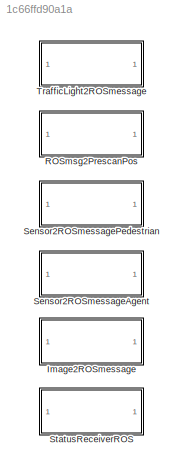
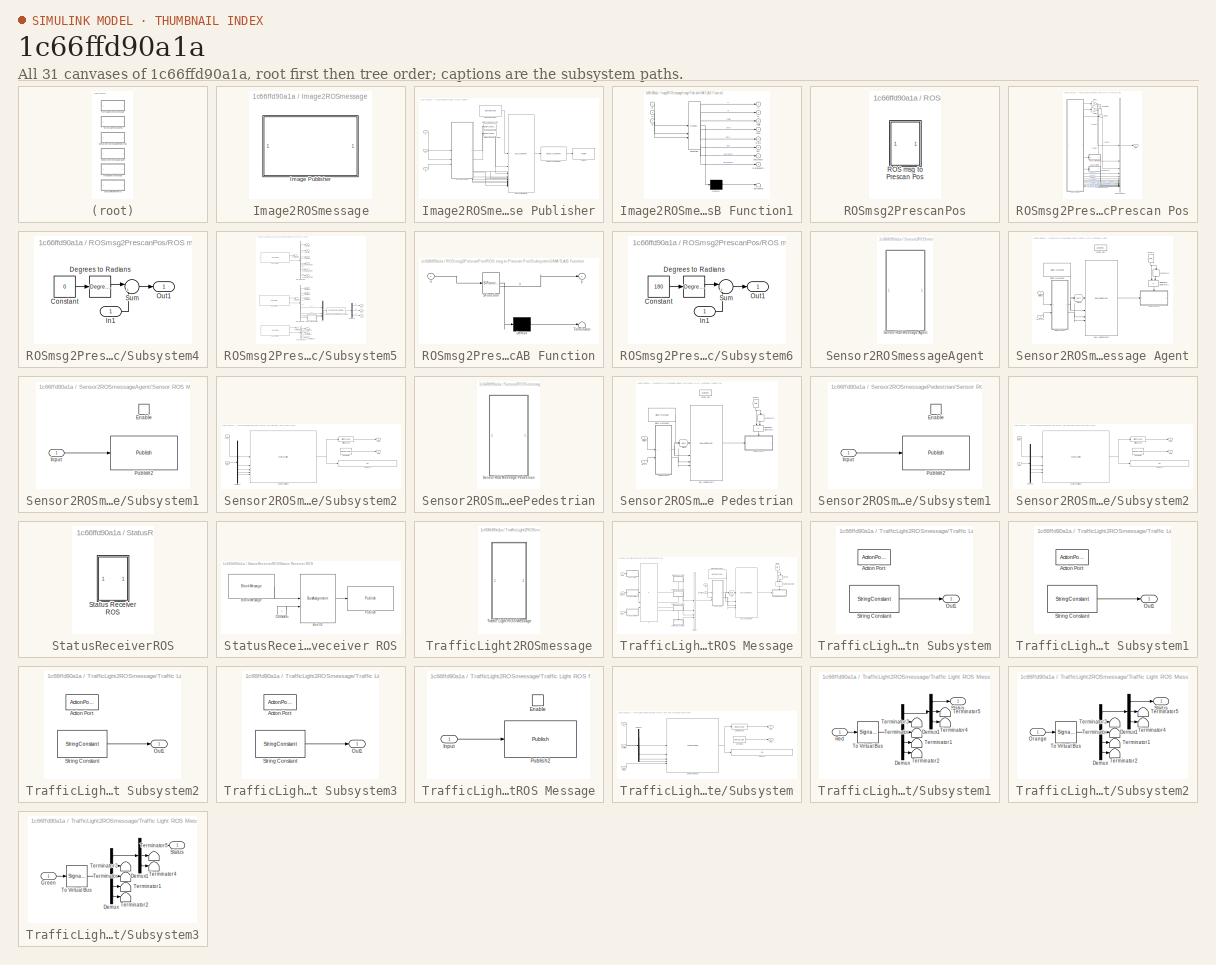
[diagram: thumbnail index - all 31 canvases of the model, root first then tree order]
MODEL slx_1c66ffd90a1a
KIND library
CONFIG AbsTol = auto
CONFIG EnableMultiTasking = off
CONFIG FixedStep = auto
CONFIG MaxStep = auto
CONFIG MinStep = auto
CONFIG RelTol = 1e-3
CONFIG SampleTimeConstraint = Unconstrained
CONFIG SolverName = VariableStepAuto
CONFIG StartTime = 0.0
CONFIG StopTime = 10.0
BLOCK [SubSystem] Image2ROSmessage
BLOCK [SubSystem] Image2ROSmessage/Image Publisher
BLOCK [Inport] Image2ROSmessage/Image Publisher/B
  Port = 3
BLOCK [Reference] Image2ROSmessage/Image Publisher/Blank Message1  REF=robotlib/Blank Message
  SourceBlock = robotlib/Blank Message
  SourceType = ROS Blank Message
BLOCK [BusAssignment] Image2ROSmessage/Image Publisher/Bus Assignment1
  AssignedSignals = Height,Width,IsBigendian,Step,Data,Encoding,Encoding_SL_Info.CurrentLength,Encoding_SL_Info.ReceivedLength,Data_SL_Info.CurrentLength,Data_SL_Info.ReceivedLength
BLOCK [DataTypeConversion] Image2ROSmessage/Image Publisher/Data Type Conversion
  OutDataTypeStr = uint32
  RndMeth = Round
  SaturateOnIntegerOverflow = off
BLOCK [DataTypeConversion] Image2ROSmessage/Image Publisher/Data Type Conversion1
  OutDataTypeStr = uint32
  RndMeth = Round
  SaturateOnIntegerOverflow = off
BLOCK [Inport] Image2ROSmessage/Image Publisher/G
  Port = 2
BLOCK [Reference] Image2ROSmessage/Image Publisher/Header Assignment  REF=robotlib/Header Assignment
  SourceBlock = robotlib/Header Assignment
  SourceType = ROS Header
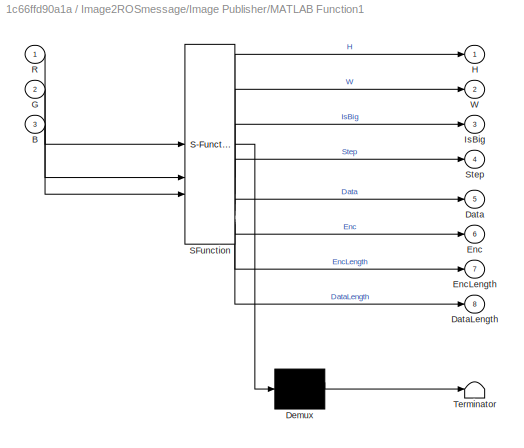
BLOCK [SubSystem] Image2ROSmessage/Image Publisher/MATLAB Function1
  ErrorFcn = Stateflow.Translate.translate
  PermitHierarchicalResolution = ExplicitOnly
  SFBlockType = MATLAB Function
  TreatAsAtomicUnit = on
BLOCK [Demux] Image2ROSmessage/Image Publisher/MATLAB Function1/ Demux 
  Outputs = 1
BLOCK [S-Function] Image2ROSmessage/Image Publisher/MATLAB Function1/ SFunction 
  EnableBusSupport = on
  FunctionName = sf_sfun
  PortCounts = [3 9]
  SFcnIsStateOwnerBlock = off
  SFunctionDeploymentMode = off
  Tag = Stateflow S-Function 1
BLOCK [Terminator] Image2ROSmessage/Image Publisher/MATLAB Function1/ Terminator 
BLOCK [Inport] Image2ROSmessage/Image Publisher/MATLAB Function1/B
  Port = 3
BLOCK [Outport] Image2ROSmessage/Image Publisher/MATLAB Function1/Data
  Port = 5
BLOCK [Outport] Image2ROSmessage/Image Publisher/MATLAB Function1/DataLength
  Port = 8
BLOCK [Outport] Image2ROSmessage/Image Publisher/MATLAB Function1/Enc
  Port = 6
BLOCK [Outport] Image2ROSmessage/Image Publisher/MATLAB Function1/EncLength
  Port = 7
BLOCK [Inport] Image2ROSmessage/Image Publisher/MATLAB Function1/G
  Port = 2
BLOCK [Outport] Image2ROSmessage/Image Publisher/MATLAB Function1/H
BLOCK [Outport] Image2ROSmessage/Image Publisher/MATLAB Function1/IsBig
  Port = 3
BLOCK [Inport] Image2ROSmessage/Image Publisher/MATLAB Function1/R
BLOCK [Outport] Image2ROSmessage/Image Publisher/MATLAB Function1/Step
  Port = 4
BLOCK [Outport] Image2ROSmessage/Image Publisher/MATLAB Function1/W
  Port = 2
BLOCK [Reference] Image2ROSmessage/Image Publisher/Publish1  REF=robotlib/Publish
  SourceBlock = robotlib/Publish
  SourceType = ROS Publish
BLOCK [Inport] Image2ROSmessage/Image Publisher/R
BLOCK [SubSystem] ROSmsg2PrescanPos
BLOCK [SubSystem] ROSmsg2PrescanPos/ROS msg to Prescan Pos
BLOCK [BusCreator] ROSmsg2PrescanPos/ROS msg to Prescan Pos/Bus Creator3
  DisplayOption = bar
  InheritFromInputs = on
  Inputs = 15
  NonVirtualBus = on
  OutDataTypeStr = Bus: PRESCAN_STATEACTUATORDATA
BLOCK [Constant] ROSmsg2PrescanPos/ROS msg to Prescan Pos/Constant1
  NameLocation = left
  Value = 0.4
BLOCK [Gain] ROSmsg2PrescanPos/ROS msg to Prescan Pos/Gain2
  Gain = 10
BLOCK [Gain] ROSmsg2PrescanPos/ROS msg to Prescan Pos/Gain3
  Gain = 10
BLOCK [Outport] ROSmsg2PrescanPos/ROS msg to Prescan Pos/Out1
BLOCK [SubSystem] ROSmsg2PrescanPos/ROS msg to Prescan Pos/Subsystem4
BLOCK [Constant] ROSmsg2PrescanPos/ROS msg to Prescan Pos/Subsystem4/Constant
  Value = 0
BLOCK [Reference] ROSmsg2PrescanPos/ROS msg to Prescan Pos/Subsystem4/Degrees to Radians  REF=simulink_extras/Transformations/Degrees to
Radians
  SourceBlock = simulink_extras/Transformations/Degrees to\nRadians
  SourceType = DegreesToRadians
BLOCK [Inport] ROSmsg2PrescanPos/ROS msg to Prescan Pos/Subsystem4/In1
BLOCK [Outport] ROSmsg2PrescanPos/ROS msg to Prescan Pos/Subsystem4/Out1
BLOCK [Sum] ROSmsg2PrescanPos/ROS msg to Prescan Pos/Subsystem4/Sum
  Inputs = |++
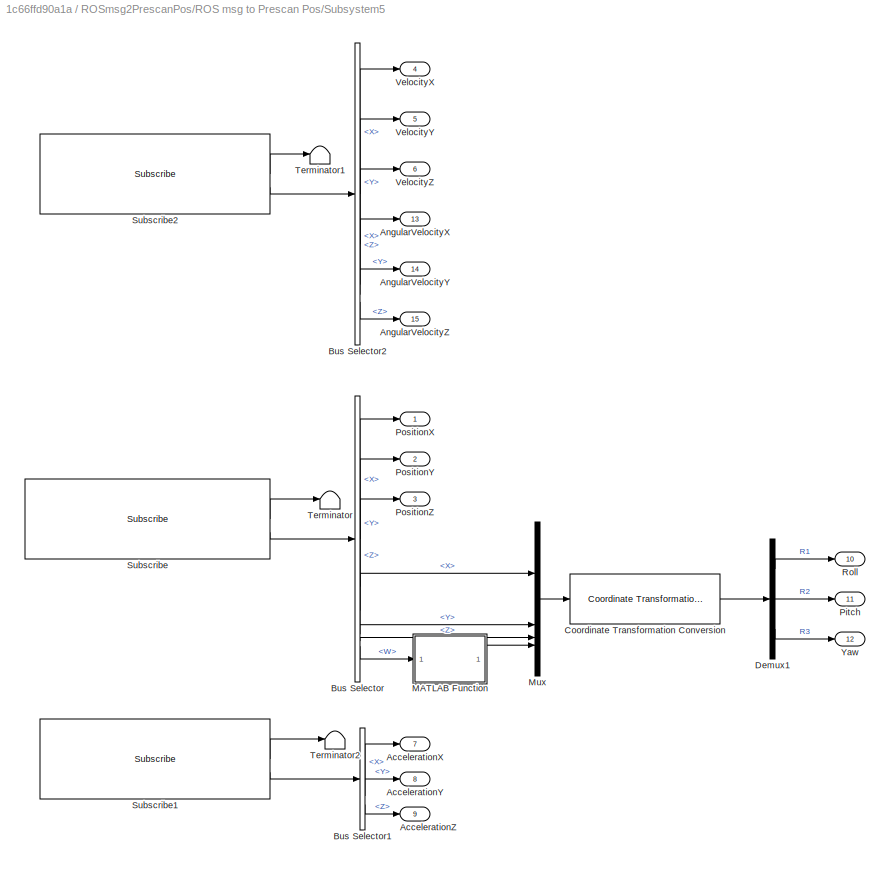
BLOCK [SubSystem] ROSmsg2PrescanPos/ROS msg to Prescan Pos/Subsystem5
BLOCK [Outport] ROSmsg2PrescanPos/ROS msg to Prescan Pos/Subsystem5/AccelerationX 
  Port = 7
BLOCK [Outport] ROSmsg2PrescanPos/ROS msg to Prescan Pos/Subsystem5/AccelerationY
  Port = 8
BLOCK [Outport] ROSmsg2PrescanPos/ROS msg to Prescan Pos/Subsystem5/AccelerationZ
  Port = 9
BLOCK [Outport] ROSmsg2PrescanPos/ROS msg to Prescan Pos/Subsystem5/AngularVelocityX
  Port = 13
BLOCK [Outport] ROSmsg2PrescanPos/ROS msg to Prescan Pos/Subsystem5/AngularVelocityY
  Port = 14
BLOCK [Outport] ROSmsg2PrescanPos/ROS msg to Prescan Pos/Subsystem5/AngularVelocityZ
  Port = 15
BLOCK [BusSelector] ROSmsg2PrescanPos/ROS msg to Prescan Pos/Subsystem5/Bus Selector
  OutputSignals = Pose.Position.X,Pose.Position.Y,Pose.Position.Z,Pose.Orientation.X,Pose.Orientation.Y,Pose.Orientation.Z,Pose.Orientation.W
BLOCK [BusSelector] ROSmsg2PrescanPos/ROS msg to Prescan Pos/Subsystem5/Bus Selector1
  OutputSignals = Twist.Linear.X,Twist.Linear.Y,Twist.Linear.Z
BLOCK [BusSelector] ROSmsg2PrescanPos/ROS msg to Prescan Pos/Subsystem5/Bus Selector2
  OutputSignals = Twist.Linear.X,Twist.Linear.Y,Twist.Linear.Z,Twist.Angular.X,Twist.Angular.Y,Twist.Angular.Z
BLOCK [Reference] ROSmsg2PrescanPos/ROS msg to Prescan Pos/Subsystem5/Coordinate Transformation Conversion  REF=robotcorelib/Coordinate Transformation Conversion
  SourceBlock = robotcorelib/Coordinate Transformation Conversion
  SourceType = robotics.slcore.internal.block.CoordinateTransformationConversion
BLOCK [Demux] ROSmsg2PrescanPos/ROS msg to Prescan Pos/Subsystem5/Demux1
  Outputs = 3
BLOCK [SubSystem] ROSmsg2PrescanPos/ROS msg to Prescan Pos/Subsystem5/MATLAB Function
  ErrorFcn = Stateflow.Translate.translate
  PermitHierarchicalResolution = ExplicitOnly
  SFBlockType = MATLAB Function
  TreatAsAtomicUnit = on
BLOCK [Demux] ROSmsg2PrescanPos/ROS msg to Prescan Pos/Subsystem5/MATLAB Function/ Demux 
  Outputs = 1
BLOCK [S-Function] ROSmsg2PrescanPos/ROS msg to Prescan Pos/Subsystem5/MATLAB Function/ SFunction 
  EnableBusSupport = off
  FunctionName = sf_sfun
  PortCounts = [1 2]
  SFcnIsStateOwnerBlock = off
  SFunctionDeploymentMode = off
  Tag = Stateflow S-Function 2
BLOCK [Terminator] ROSmsg2PrescanPos/ROS msg to Prescan Pos/Subsystem5/MATLAB Function/ Terminator 
BLOCK [Inport] ROSmsg2PrescanPos/ROS msg to Prescan Pos/Subsystem5/MATLAB Function/u
BLOCK [Outport] ROSmsg2PrescanPos/ROS msg to Prescan Pos/Subsystem5/MATLAB Function/y
BLOCK [Mux] ROSmsg2PrescanPos/ROS msg to Prescan Pos/Subsystem5/Mux
  DisplayOption = bar
BLOCK [Outport] ROSmsg2PrescanPos/ROS msg to Prescan Pos/Subsystem5/Pitch
  Port = 11
BLOCK [Outport] ROSmsg2PrescanPos/ROS msg to Prescan Pos/Subsystem5/PositionX
BLOCK [Outport] ROSmsg2PrescanPos/ROS msg to Prescan Pos/Subsystem5/PositionY
  Port = 2
BLOCK [Outport] ROSmsg2PrescanPos/ROS msg to Prescan Pos/Subsystem5/PositionZ
  Port = 3
BLOCK [Outport] ROSmsg2PrescanPos/ROS msg to Prescan Pos/Subsystem5/Roll
  Port = 10
BLOCK [Reference] ROSmsg2PrescanPos/ROS msg to Prescan Pos/Subsystem5/Subscribe  REF=robotlib/Subscribe
  SourceBlock = robotlib/Subscribe
  SourceType = ROS Subscribe
BLOCK [Reference] ROSmsg2PrescanPos/ROS msg to Prescan Pos/Subsystem5/Subscribe1  REF=robotlib/Subscribe
  SourceBlock = robotlib/Subscribe
  SourceType = ROS Subscribe
BLOCK [Reference] ROSmsg2PrescanPos/ROS msg to Prescan Pos/Subsystem5/Subscribe2  REF=robotlib/Subscribe
  SourceBlock = robotlib/Subscribe
  SourceType = ROS Subscribe
BLOCK [Terminator] ROSmsg2PrescanPos/ROS msg to Prescan Pos/Subsystem5/Terminator
BLOCK [Terminator] ROSmsg2PrescanPos/ROS msg to Prescan Pos/Subsystem5/Terminator1
BLOCK [Terminator] ROSmsg2PrescanPos/ROS msg to Prescan Pos/Subsystem5/Terminator2
BLOCK [Outport] ROSmsg2PrescanPos/ROS msg to Prescan Pos/Subsystem5/VelocityX
  Port = 4
BLOCK [Outport] ROSmsg2PrescanPos/ROS msg to Prescan Pos/Subsystem5/VelocityY
  Port = 5
BLOCK [Outport] ROSmsg2PrescanPos/ROS msg to Prescan Pos/Subsystem5/VelocityZ
  Port = 6
BLOCK [Outport] ROSmsg2PrescanPos/ROS msg to Prescan Pos/Subsystem5/Yaw
  Port = 12
BLOCK [SubSystem] ROSmsg2PrescanPos/ROS msg to Prescan Pos/Subsystem6
BLOCK [Constant] ROSmsg2PrescanPos/ROS msg to Prescan Pos/Subsystem6/Constant
  Value = 180
BLOCK [Reference] ROSmsg2PrescanPos/ROS msg to Prescan Pos/Subsystem6/Degrees to Radians  REF=simulink_extras/Transformations/Degrees to
Radians
  SourceBlock = simulink_extras/Transformations/Degrees to\nRadians
  SourceType = DegreesToRadians
BLOCK [Inport] ROSmsg2PrescanPos/ROS msg to Prescan Pos/Subsystem6/In1
BLOCK [Outport] ROSmsg2PrescanPos/ROS msg to Prescan Pos/Subsystem6/Out1
BLOCK [Sum] ROSmsg2PrescanPos/ROS msg to Prescan Pos/Subsystem6/Sum
  Inputs = |++
BLOCK [Sum] ROSmsg2PrescanPos/ROS msg to Prescan Pos/Sum1
  Inputs = ++|
BLOCK [SubSystem] Sensor2ROSmessageAgent
  AncestorBlock = MainLibrary/Sensor2ROSmessage
  LibrarySourceBlock = MainLibrary/Sensor2ROSmessage
BLOCK [SubSystem] Sensor2ROSmessageAgent/Sensor ROS Message Agent
  AncestorBlock = MainLibrary/Sensor2ROSmessagePedestrian/Sensor ROS Message Pedestrian
  LibrarySourceBlock = MainLibrary/Sensor2ROSmessagePedestrian/Sensor ROS Message Pedestrian
  TreatAsAtomicUnit = on
BLOCK [ActionPort] Sensor2ROSmessageAgent/Sensor ROS Message Agent/Action Port
BLOCK [Reference] Sensor2ROSmessageAgent/Sensor ROS Message Agent/Blank Message2  REF=robotlib/Blank Message
  SourceBlock = robotlib/Blank Message
  SourceType = ROS Blank Message
BLOCK [BusAssignment] Sensor2ROSmessageAgent/Sensor ROS Message Agent/Bus Assignment2
  AssignedSignals = Data,Data_SL_Info.CurrentLength,Data_SL_Info.ReceivedLength
BLOCK [From] Sensor2ROSmessageAgent/Sensor ROS Message Agent/From1
  GotoTag = data
  NameLocation = left
BLOCK [Goto] Sensor2ROSmessageAgent/Sensor ROS Message Agent/Goto
  GotoTag = data
BLOCK [Memory] Sensor2ROSmessageAgent/Sensor ROS Message Agent/Memory1
  InheritSampleTime = on
  InitialCondition = zeros(1,128)
  NameLocation = left
BLOCK [Inport] Sensor2ROSmessageAgent/Sensor ROS Message Agent/Object
BLOCK [Inport] Sensor2ROSmessageAgent/Sensor ROS Message Agent/R V T H
  Port = 2
BLOCK [RelationalOperator] Sensor2ROSmessageAgent/Sensor ROS Message Agent/Relational Operator1
  InputSameDT = off
  NameLocation = left
  Operator = ~=
  OutDataTypeStr = boolean
  RndMeth = Simplest
BLOCK [SubSystem] Sensor2ROSmessageAgent/Sensor ROS Message Agent/Subsystem1
BLOCK [EnablePort] Sensor2ROSmessageAgent/Sensor ROS Message Agent/Subsystem1/Enable
BLOCK [Inport] Sensor2ROSmessageAgent/Sensor ROS Message Agent/Subsystem1/Input
BLOCK [Reference] Sensor2ROSmessageAgent/Sensor ROS Message Agent/Subsystem1/Publish2  REF=robotlib/Publish
  SourceBlock = robotlib/Publish
  SourceType = ROS Publish
BLOCK [SubSystem] Sensor2ROSmessageAgent/Sensor ROS Message Agent/Subsystem2
  AncestorBlock = MainLibrary/Sensor2ROSmessagePedestrian/Sensor ROS Message Pedestrian/Subsystem2
  LibrarySourceBlock = MainLibrary/Sensor2ROSmessagePedestrian/Sensor ROS Message Pedestrian/Subsystem2
BLOCK [ComposeString] Sensor2ROSmessageAgent/Sensor ROS Message Agent/Subsystem2/Compose String1
  Format = "{'id': '%s', 'range': %.4f, 'vel': %.4f, 'theta': %.4f,'heading': %.4f}"
BLOCK [Constant] Sensor2ROSmessageAgent/Sensor ROS Message Agent/Subsystem2/Constant1
  Value = uint32(128)
BLOCK [Demux] Sensor2ROSmessageAgent/Sensor ROS Message Agent/Subsystem2/Demux2
BLOCK [Display] Sensor2ROSmessageAgent/Sensor ROS Message Agent/Subsystem2/Display8
  Decimation = 1
BLOCK [Inport] Sensor2ROSmessageAgent/Sensor ROS Message Agent/Subsystem2/Object
BLOCK [Outport] Sensor2ROSmessageAgent/Sensor ROS Message Agent/Subsystem2/Out1
BLOCK [Outport] Sensor2ROSmessageAgent/Sensor ROS Message Agent/Subsystem2/Out2
  Port = 2
BLOCK [Inport] Sensor2ROSmessageAgent/Sensor ROS Message Agent/Subsystem2/R V T
  Port = 2
BLOCK [StringToASCII] Sensor2ROSmessageAgent/Sensor ROS Message Agent/Subsystem2/String to ASCII
  OutputVectorSize = 128
BLOCK [SubSystem] Sensor2ROSmessagePedestrian
BLOCK [SubSystem] Sensor2ROSmessagePedestrian/Sensor ROS Message Pedestrian
  TreatAsAtomicUnit = on
BLOCK [ActionPort] Sensor2ROSmessagePedestrian/Sensor ROS Message Pedestrian/Action Port
BLOCK [Reference] Sensor2ROSmessagePedestrian/Sensor ROS Message Pedestrian/Blank Message2  REF=robotlib/Blank Message
  SourceBlock = robotlib/Blank Message
  SourceType = ROS Blank Message
BLOCK [BusAssignment] Sensor2ROSmessagePedestrian/Sensor ROS Message Pedestrian/Bus Assignment2
  AssignedSignals = Data,Data_SL_Info.CurrentLength,Data_SL_Info.ReceivedLength
BLOCK [From] Sensor2ROSmessagePedestrian/Sensor ROS Message Pedestrian/From1
  GotoTag = data
  NameLocation = left
BLOCK [Goto] Sensor2ROSmessagePedestrian/Sensor ROS Message Pedestrian/Goto
  GotoTag = data
BLOCK [Memory] Sensor2ROSmessagePedestrian/Sensor ROS Message Pedestrian/Memory1
  InheritSampleTime = on
  InitialCondition = zeros(1,128)
  NameLocation = left
BLOCK [Inport] Sensor2ROSmessagePedestrian/Sensor ROS Message Pedestrian/Object
BLOCK [Inport] Sensor2ROSmessagePedestrian/Sensor ROS Message Pedestrian/R V T
  Port = 2
BLOCK [RelationalOperator] Sensor2ROSmessagePedestrian/Sensor ROS Message Pedestrian/Relational Operator1
  InputSameDT = off
  NameLocation = left
  Operator = ~=
  OutDataTypeStr = boolean
  RndMeth = Simplest
BLOCK [SubSystem] Sensor2ROSmessagePedestrian/Sensor ROS Message Pedestrian/Subsystem1
BLOCK [EnablePort] Sensor2ROSmessagePedestrian/Sensor ROS Message Pedestrian/Subsystem1/Enable
BLOCK [Inport] Sensor2ROSmessagePedestrian/Sensor ROS Message Pedestrian/Subsystem1/Input
BLOCK [Reference] Sensor2ROSmessagePedestrian/Sensor ROS Message Pedestrian/Subsystem1/Publish2  REF=robotlib/Publish
  SourceBlock = robotlib/Publish
  SourceType = ROS Publish
BLOCK [SubSystem] Sensor2ROSmessagePedestrian/Sensor ROS Message Pedestrian/Subsystem2
BLOCK [ComposeString] Sensor2ROSmessagePedestrian/Sensor ROS Message Pedestrian/Subsystem2/Compose String1
  Format = "{'id': 'pd_%.0f', 'range': %.4f, 'vel': %.4f, 'theta': %.4f}"
BLOCK [Constant] Sensor2ROSmessagePedestrian/Sensor ROS Message Pedestrian/Subsystem2/Constant1
  Value = uint32(128)
BLOCK [Demux] Sensor2ROSmessagePedestrian/Sensor ROS Message Pedestrian/Subsystem2/Demux2
  Outputs = 3
BLOCK [Display] Sensor2ROSmessagePedestrian/Sensor ROS Message Pedestrian/Subsystem2/Display8
  Decimation = 1
BLOCK [Inport] Sensor2ROSmessagePedestrian/Sensor ROS Message Pedestrian/Subsystem2/Object
BLOCK [Outport] Sensor2ROSmessagePedestrian/Sensor ROS Message Pedestrian/Subsystem2/Out1
BLOCK [Outport] Sensor2ROSmessagePedestrian/Sensor ROS Message Pedestrian/Subsystem2/Out2
  Port = 2
BLOCK [Inport] Sensor2ROSmessagePedestrian/Sensor ROS Message Pedestrian/Subsystem2/R V T
  Port = 2
BLOCK [StringToASCII] Sensor2ROSmessagePedestrian/Sensor ROS Message Pedestrian/Subsystem2/String to ASCII
  OutputVectorSize = 128
BLOCK [SubSystem] StatusReceiverROS
  AncestorBlock = MainLibrary/Image2ROSmessage
  LibrarySourceBlock = MainLibrary/Image2ROSmessage
BLOCK [SubSystem] StatusReceiverROS/Status Receiver ROS
BLOCK [Reference] StatusReceiverROS/Status Receiver ROS/Blank Message  REF=robotlib/Blank Message
  SourceBlock = robotlib/Blank Message
  SourceType = ROS Blank Message
BLOCK [BusAssignment] StatusReceiverROS/Status Receiver ROS/Bus tf3
  AssignedSignals = Data
BLOCK [Constant] StatusReceiverROS/Status Receiver ROS/Constant
  OutDataTypeStr = boolean
BLOCK [Reference] StatusReceiverROS/Status Receiver ROS/Publish  REF=robotlib/Publish
  SourceBlock = robotlib/Publish
  SourceType = ROS Publish
BLOCK [SubSystem] TrafficLight2ROSmessage
BLOCK [SubSystem] TrafficLight2ROSmessage/Traffic Light ROS Message
  NameLocation = right
BLOCK [Reference] TrafficLight2ROSmessage/Traffic Light ROS Message/Blank Message2  REF=robotlib/Blank Message
  SourceBlock = robotlib/Blank Message
  SourceType = ROS Blank Message
BLOCK [BusAssignment] TrafficLight2ROSmessage/Traffic Light ROS Message/Bus Assignment2
  AssignedSignals = Data,Data_SL_Info.CurrentLength,Data_SL_Info.ReceivedLength
BLOCK [From] TrafficLight2ROSmessage/Traffic Light ROS Message/From
  GotoTag = data
  NameLocation = left
BLOCK [Goto] TrafficLight2ROSmessage/Traffic Light ROS Message/Goto
  GotoTag = data
BLOCK [Inport] TrafficLight2ROSmessage/Traffic Light ROS Message/Green
  Port = 3
BLOCK [If] TrafficLight2ROSmessage/Traffic Light ROS Message/If
  ElseIfExpressions = u2 ~= 0, u3 ~= 0
  IfExpression = u1 ~= 0
  NumInputs = 3
BLOCK [SubSystem] TrafficLight2ROSmessage/Traffic Light ROS Message/If Action Subsystem
  TreatAsAtomicUnit = on
BLOCK [ActionPort] TrafficLight2ROSmessage/Traffic Light ROS Message/If Action Subsystem/Action Port
  ActionPortLabel = if(u1 ~= 0)
BLOCK [Outport] TrafficLight2ROSmessage/Traffic Light ROS Message/If Action Subsystem/Out1
BLOCK [StringConstant] TrafficLight2ROSmessage/Traffic Light ROS Message/If Action Subsystem/String Constant
  String = "red"
BLOCK [SubSystem] TrafficLight2ROSmessage/Traffic Light ROS Message/If Action Subsystem1
  TreatAsAtomicUnit = on
BLOCK [ActionPort] TrafficLight2ROSmessage/Traffic Light ROS Message/If Action Subsystem1/Action Port
  ActionPortLabel = elseif(u2 ~= 0)
BLOCK [Outport] TrafficLight2ROSmessage/Traffic Light ROS Message/If Action Subsystem1/Out1
BLOCK [StringConstant] TrafficLight2ROSmessage/Traffic Light ROS Message/If Action Subsystem1/String Constant
  String = "orange"
BLOCK [SubSystem] TrafficLight2ROSmessage/Traffic Light ROS Message/If Action Subsystem2
  TreatAsAtomicUnit = on
BLOCK [ActionPort] TrafficLight2ROSmessage/Traffic Light ROS Message/If Action Subsystem2/Action Port
  ActionPortLabel = elseif( u3 ~= 0)
BLOCK [Outport] TrafficLight2ROSmessage/Traffic Light ROS Message/If Action Subsystem2/Out1
BLOCK [StringConstant] TrafficLight2ROSmessage/Traffic Light ROS Message/If Action Subsystem2/String Constant
  String = "green"
BLOCK [SubSystem] TrafficLight2ROSmessage/Traffic Light ROS Message/If Action Subsystem3
  TreatAsAtomicUnit = on
BLOCK [ActionPort] TrafficLight2ROSmessage/Traffic Light ROS Message/If Action Subsystem3/Action Port
  ActionPortLabel = else
BLOCK [Outport] TrafficLight2ROSmessage/Traffic Light ROS Message/If Action Subsystem3/Out1
BLOCK [StringConstant] TrafficLight2ROSmessage/Traffic Light ROS Message/If Action Subsystem3/String Constant
  String = "colourless"
BLOCK [Memory] TrafficLight2ROSmessage/Traffic Light ROS Message/Memory
  InitialCondition = zeros(1,128)
  NameLocation = left
BLOCK [Merge] TrafficLight2ROSmessage/Traffic Light ROS Message/Merge
  Inputs = 4
BLOCK [Inport] TrafficLight2ROSmessage/Traffic Light ROS Message/Orange
  Port = 2
BLOCK [Inport] TrafficLight2ROSmessage/Traffic Light ROS Message/Red
BLOCK [RelationalOperator] TrafficLight2ROSmessage/Traffic Light ROS Message/Relational Operator
  InputSameDT = off
  NameLocation = left
  Operator = ~=
  OutDataTypeStr = boolean
  RndMeth = Simplest
BLOCK [SubSystem] TrafficLight2ROSmessage/Traffic Light ROS Message/Send ROS Message
  TreatAsAtomicUnit = on
BLOCK [EnablePort] TrafficLight2ROSmessage/Traffic Light ROS Message/Send ROS Message/Enable
BLOCK [Inport] TrafficLight2ROSmessage/Traffic Light ROS Message/Send ROS Message/Input
BLOCK [Reference] TrafficLight2ROSmessage/Traffic Light ROS Message/Send ROS Message/Publish2  REF=robotlib/Publish
  SourceBlock = robotlib/Publish
  SourceType = ROS Publish
BLOCK [SubSystem] TrafficLight2ROSmessage/Traffic Light ROS Message/Subsystem
BLOCK [ComposeString] TrafficLight2ROSmessage/Traffic Light ROS Message/Subsystem/Compose String1
  Format = "{'id': 'tl_%s', 'position': [%.4f, %.4f, %.4f], 'status': '%s'}"
BLOCK [Constant] TrafficLight2ROSmessage/Traffic Light ROS Message/Subsystem/Constant1
  Value = uint32(128)
BLOCK [Demux] TrafficLight2ROSmessage/Traffic Light ROS Message/Subsystem/Demux2
  Outputs = 3
BLOCK [Display] TrafficLight2ROSmessage/Traffic Light ROS Message/Subsystem/Display8
  Decimation = 1
BLOCK [Outport] TrafficLight2ROSmessage/Traffic Light ROS Message/Subsystem/Out1
BLOCK [Outport] TrafficLight2ROSmessage/Traffic Light ROS Message/Subsystem/Out2
  Port = 2
BLOCK [StringToASCII] TrafficLight2ROSmessage/Traffic Light ROS Message/Subsystem/String to ASCII
  OutputVectorSize = 128
BLOCK [Inport] TrafficLight2ROSmessage/Traffic Light ROS Message/Subsystem/id
BLOCK [Inport] TrafficLight2ROSmessage/Traffic Light ROS Message/Subsystem/position
  Port = 2
BLOCK [Inport] TrafficLight2ROSmessage/Traffic Light ROS Message/Subsystem/status
  Port = 3
BLOCK [SubSystem] TrafficLight2ROSmessage/Traffic Light ROS Message/Subsystem1
BLOCK [Demux] TrafficLight2ROSmessage/Traffic Light ROS Message/Subsystem1/Demux
  Outputs = 5
BLOCK [Demux] TrafficLight2ROSmessage/Traffic Light ROS Message/Subsystem1/Demux1
  Outputs = 3
BLOCK [Inport] TrafficLight2ROSmessage/Traffic Light ROS Message/Subsystem1/Red
BLOCK [Outport] TrafficLight2ROSmessage/Traffic Light ROS Message/Subsystem1/Status
BLOCK [Terminator] TrafficLight2ROSmessage/Traffic Light ROS Message/Subsystem1/Terminator
BLOCK [Terminator] TrafficLight2ROSmessage/Traffic Light ROS Message/Subsystem1/Terminator1
BLOCK [Terminator] TrafficLight2ROSmessage/Traffic Light ROS Message/Subsystem1/Terminator2
BLOCK [Terminator] TrafficLight2ROSmessage/Traffic Light ROS Message/Subsystem1/Terminator3
BLOCK [Terminator] TrafficLight2ROSmessage/Traffic Light ROS Message/Subsystem1/Terminator4
BLOCK [Terminator] TrafficLight2ROSmessage/Traffic Light ROS Message/Subsystem1/Terminator5
BLOCK [SignalConversion] TrafficLight2ROSmessage/Traffic Light ROS Message/Subsystem1/To Virtual Bus
  ConversionOutput = Virtual bus
  OverrideOpt = off
BLOCK [SubSystem] TrafficLight2ROSmessage/Traffic Light ROS Message/Subsystem2
BLOCK [Demux] TrafficLight2ROSmessage/Traffic Light ROS Message/Subsystem2/Demux
  Outputs = 5
BLOCK [Demux] TrafficLight2ROSmessage/Traffic Light ROS Message/Subsystem2/Demux1
  Outputs = 3
BLOCK [Inport] TrafficLight2ROSmessage/Traffic Light ROS Message/Subsystem2/Orange
BLOCK [Outport] TrafficLight2ROSmessage/Traffic Light ROS Message/Subsystem2/Status
BLOCK [Terminator] TrafficLight2ROSmessage/Traffic Light ROS Message/Subsystem2/Terminator
BLOCK [Terminator] TrafficLight2ROSmessage/Traffic Light ROS Message/Subsystem2/Terminator1
BLOCK [Terminator] TrafficLight2ROSmessage/Traffic Light ROS Message/Subsystem2/Terminator2
BLOCK [Terminator] TrafficLight2ROSmessage/Traffic Light ROS Message/Subsystem2/Terminator3
BLOCK [Terminator] TrafficLight2ROSmessage/Traffic Light ROS Message/Subsystem2/Terminator4
BLOCK [Terminator] TrafficLight2ROSmessage/Traffic Light ROS Message/Subsystem2/Terminator5
BLOCK [SignalConversion] TrafficLight2ROSmessage/Traffic Light ROS Message/Subsystem2/To Virtual Bus
  ConversionOutput = Virtual bus
  OverrideOpt = off
BLOCK [SubSystem] TrafficLight2ROSmessage/Traffic Light ROS Message/Subsystem3
BLOCK [Demux] TrafficLight2ROSmessage/Traffic Light ROS Message/Subsystem3/Demux
  Outputs = 5
BLOCK [Demux] TrafficLight2ROSmessage/Traffic Light ROS Message/Subsystem3/Demux1
  Outputs = 3
BLOCK [Inport] TrafficLight2ROSmessage/Traffic Light ROS Message/Subsystem3/Green
BLOCK [Outport] TrafficLight2ROSmessage/Traffic Light ROS Message/Subsystem3/Status
BLOCK [Terminator] TrafficLight2ROSmessage/Traffic Light ROS Message/Subsystem3/Terminator
BLOCK [Terminator] TrafficLight2ROSmessage/Traffic Light ROS Message/Subsystem3/Terminator1
BLOCK [Terminator] TrafficLight2ROSmessage/Traffic Light ROS Message/Subsystem3/Terminator2
BLOCK [Terminator] TrafficLight2ROSmessage/Traffic Light ROS Message/Subsystem3/Terminator3
BLOCK [Terminator] TrafficLight2ROSmessage/Traffic Light ROS Message/Subsystem3/Terminator4
BLOCK [Terminator] TrafficLight2ROSmessage/Traffic Light ROS Message/Subsystem3/Terminator5
BLOCK [SignalConversion] TrafficLight2ROSmessage/Traffic Light ROS Message/Subsystem3/To Virtual Bus
  ConversionOutput = Virtual bus
  OverrideOpt = off
BLOCK [Inport] TrafficLight2ROSmessage/Traffic Light ROS Message/id
  Port = 4
BLOCK [Inport] TrafficLight2ROSmessage/Traffic Light ROS Message/position
  Port = 5
LINE Image2ROSmessage/Image Publisher/B:1 -> Image2ROSmessage/Image Publisher/MATLAB Function1:3
LINE Image2ROSmessage/Image Publisher/Blank Message1:1 -> Image2ROSmessage/Image Publisher/Bus Assignment1:1
LINE Image2ROSmessage/Image Publisher/Bus Assignment1:1 -> Image2ROSmessage/Image Publisher/Header Assignment:1
LINE Image2ROSmessage/Image Publisher/Data Type Conversion1:1 -> Image2ROSmessage/Image Publisher/Bus Assignment1:3
LINE Image2ROSmessage/Image Publisher/Data Type Conversion:1 -> Image2ROSmessage/Image Publisher/Bus Assignment1:2
LINE Image2ROSmessage/Image Publisher/G:1 -> Image2ROSmessage/Image Publisher/MATLAB Function1:2
LINE Image2ROSmessage/Image Publisher/Header Assignment:1 -> Image2ROSmessage/Image Publisher/Publish1:1
LINE Image2ROSmessage/Image Publisher/MATLAB Function1:1 -> Image2ROSmessage/Image Publisher/Data Type Conversion:1
LINE Image2ROSmessage/Image Publisher/MATLAB Function1:2 -> Image2ROSmessage/Image Publisher/Data Type Conversion1:1
LINE Image2ROSmessage/Image Publisher/MATLAB Function1:3 -> Image2ROSmessage/Image Publisher/Bus Assignment1:4
LINE Image2ROSmessage/Image Publisher/MATLAB Function1:4 -> Image2ROSmessage/Image Publisher/Bus Assignment1:5
LINE Image2ROSmessage/Image Publisher/MATLAB Function1:5 -> Image2ROSmessage/Image Publisher/Bus Assignment1:6
LINE Image2ROSmessage/Image Publisher/MATLAB Function1:6 -> Image2ROSmessage/Image Publisher/Bus Assignment1:7
NET Image2ROSmessage/Image Publisher/MATLAB Function1:7 -> Image2ROSmessage/Image Publisher/Bus Assignment1:8, Image2ROSmessage/Image Publisher/Bus Assignment1:9
NET Image2ROSmessage/Image Publisher/MATLAB Function1:8 -> Image2ROSmessage/Image Publisher/Bus Assignment1:10, Image2ROSmessage/Image Publisher/Bus Assignment1:11
LINE Image2ROSmessage/Image Publisher/R:1 -> Image2ROSmessage/Image Publisher/MATLAB Function1:1
LINE ROSmsg2PrescanPos/ROS msg to Prescan Pos/Bus Creator3:1 -> ROSmsg2PrescanPos/ROS msg to Prescan Pos/Out1:1
LINE ROSmsg2PrescanPos/ROS msg to Prescan Pos/Constant1:1 -> ROSmsg2PrescanPos/ROS msg to Prescan Pos/Sum1:1
LINE ROSmsg2PrescanPos/ROS msg to Prescan Pos/Gain2:1 -> ROSmsg2PrescanPos/ROS msg to Prescan Pos/Bus Creator3:1
LINE ROSmsg2PrescanPos/ROS msg to Prescan Pos/Gain3:1 -> ROSmsg2PrescanPos/ROS msg to Prescan Pos/Bus Creator3:2
LINE ROSmsg2PrescanPos/ROS msg to Prescan Pos/Subsystem4/Constant:1 -> ROSmsg2PrescanPos/ROS msg to Prescan Pos/Subsystem4/Degrees to Radians:1
LINE ROSmsg2PrescanPos/ROS msg to Prescan Pos/Subsystem4/Degrees to Radians:1 -> ROSmsg2PrescanPos/ROS msg to Prescan Pos/Subsystem4/Sum:1
LINE ROSmsg2PrescanPos/ROS msg to Prescan Pos/Subsystem4/In1:1 -> ROSmsg2PrescanPos/ROS msg to Prescan Pos/Subsystem4/Sum:2
LINE ROSmsg2PrescanPos/ROS msg to Prescan Pos/Subsystem4/Sum:1 -> ROSmsg2PrescanPos/ROS msg to Prescan Pos/Subsystem4/Out1:1
LINE ROSmsg2PrescanPos/ROS msg to Prescan Pos/Subsystem4:1 -> ROSmsg2PrescanPos/ROS msg to Prescan Pos/Bus Creator3:12
LINE ROSmsg2PrescanPos/ROS msg to Prescan Pos/Subsystem5/Bus Selector1:1 -> ROSmsg2PrescanPos/ROS msg to Prescan Pos/Subsystem5/AccelerationX :1
LINE ROSmsg2PrescanPos/ROS msg to Prescan Pos/Subsystem5/Bus Selector1:2 -> ROSmsg2PrescanPos/ROS msg to Prescan Pos/Subsystem5/AccelerationY:1
LINE ROSmsg2PrescanPos/ROS msg to Prescan Pos/Subsystem5/Bus Selector1:3 -> ROSmsg2PrescanPos/ROS msg to Prescan Pos/Subsystem5/AccelerationZ:1
LINE ROSmsg2PrescanPos/ROS msg to Prescan Pos/Subsystem5/Bus Selector2:1 -> ROSmsg2PrescanPos/ROS msg to Prescan Pos/Subsystem5/VelocityX:1
LINE ROSmsg2PrescanPos/ROS msg to Prescan Pos/Subsystem5/Bus Selector2:2 -> ROSmsg2PrescanPos/ROS msg to Prescan Pos/Subsystem5/VelocityY:1
LINE ROSmsg2PrescanPos/ROS msg to Prescan Pos/Subsystem5/Bus Selector2:3 -> ROSmsg2PrescanPos/ROS msg to Prescan Pos/Subsystem5/VelocityZ:1
LINE ROSmsg2PrescanPos/ROS msg to Prescan Pos/Subsystem5/Bus Selector2:4 -> ROSmsg2PrescanPos/ROS msg to Prescan Pos/Subsystem5/AngularVelocityX:1
LINE ROSmsg2PrescanPos/ROS msg to Prescan Pos/Subsystem5/Bus Selector2:5 -> ROSmsg2PrescanPos/ROS msg to Prescan Pos/Subsystem5/AngularVelocityY:1
LINE ROSmsg2PrescanPos/ROS msg to Prescan Pos/Subsystem5/Bus Selector2:6 -> ROSmsg2PrescanPos/ROS msg to Prescan Pos/Subsystem5/AngularVelocityZ:1
LINE ROSmsg2PrescanPos/ROS msg to Prescan Pos/Subsystem5/Bus Selector:1 -> ROSmsg2PrescanPos/ROS msg to Prescan Pos/Subsystem5/PositionX:1
LINE ROSmsg2PrescanPos/ROS msg to Prescan Pos/Subsystem5/Bus Selector:2 -> ROSmsg2PrescanPos/ROS msg to Prescan Pos/Subsystem5/PositionY:1
LINE ROSmsg2PrescanPos/ROS msg to Prescan Pos/Subsystem5/Bus Selector:3 -> ROSmsg2PrescanPos/ROS msg to Prescan Pos/Subsystem5/PositionZ:1
LINE ROSmsg2PrescanPos/ROS msg to Prescan Pos/Subsystem5/Bus Selector:4 -> ROSmsg2PrescanPos/ROS msg to Prescan Pos/Subsystem5/Mux:1
LINE ROSmsg2PrescanPos/ROS msg to Prescan Pos/Subsystem5/Bus Selector:5 -> ROSmsg2PrescanPos/ROS msg to Prescan Pos/Subsystem5/Mux:2
LINE ROSmsg2PrescanPos/ROS msg to Prescan Pos/Subsystem5/Bus Selector:6 -> ROSmsg2PrescanPos/ROS msg to Prescan Pos/Subsystem5/Mux:3
LINE ROSmsg2PrescanPos/ROS msg to Prescan Pos/Subsystem5/Bus Selector:7 -> ROSmsg2PrescanPos/ROS msg to Prescan Pos/Subsystem5/MATLAB Function:1
LINE ROSmsg2PrescanPos/ROS msg to Prescan Pos/Subsystem5/Coordinate Transformation Conversion:1 -> ROSmsg2PrescanPos/ROS msg to Prescan Pos/Subsystem5/Demux1:1
LINE ROSmsg2PrescanPos/ROS msg to Prescan Pos/Subsystem5/Demux1:1 -> ROSmsg2PrescanPos/ROS msg to Prescan Pos/Subsystem5/Roll:1
LINE ROSmsg2PrescanPos/ROS msg to Prescan Pos/Subsystem5/Demux1:2 -> ROSmsg2PrescanPos/ROS msg to Prescan Pos/Subsystem5/Pitch:1
LINE ROSmsg2PrescanPos/ROS msg to Prescan Pos/Subsystem5/Demux1:3 -> ROSmsg2PrescanPos/ROS msg to Prescan Pos/Subsystem5/Yaw:1
LINE ROSmsg2PrescanPos/ROS msg to Prescan Pos/Subsystem5/MATLAB Function:1 -> ROSmsg2PrescanPos/ROS msg to Prescan Pos/Subsystem5/Mux:4
LINE ROSmsg2PrescanPos/ROS msg to Prescan Pos/Subsystem5/Mux:1 -> ROSmsg2PrescanPos/ROS msg to Prescan Pos/Subsystem5/Coordinate Transformation Conversion:1
LINE ROSmsg2PrescanPos/ROS msg to Prescan Pos/Subsystem5/Subscribe1:1 -> ROSmsg2PrescanPos/ROS msg to Prescan Pos/Subsystem5/Terminator2:1
LINE ROSmsg2PrescanPos/ROS msg to Prescan Pos/Subsystem5/Subscribe1:2 -> ROSmsg2PrescanPos/ROS msg to Prescan Pos/Subsystem5/Bus Selector1:1
LINE ROSmsg2PrescanPos/ROS msg to Prescan Pos/Subsystem5/Subscribe2:1 -> ROSmsg2PrescanPos/ROS msg to Prescan Pos/Subsystem5/Terminator1:1
LINE ROSmsg2PrescanPos/ROS msg to Prescan Pos/Subsystem5/Subscribe2:2 -> ROSmsg2PrescanPos/ROS msg to Prescan Pos/Subsystem5/Bus Selector2:1
LINE ROSmsg2PrescanPos/ROS msg to Prescan Pos/Subsystem5/Subscribe:1 -> ROSmsg2PrescanPos/ROS msg to Prescan Pos/Subsystem5/Terminator:1
LINE ROSmsg2PrescanPos/ROS msg to Prescan Pos/Subsystem5/Subscribe:2 -> ROSmsg2PrescanPos/ROS msg to Prescan Pos/Subsystem5/Bus Selector:1
LINE ROSmsg2PrescanPos/ROS msg to Prescan Pos/Subsystem5:1 -> ROSmsg2PrescanPos/ROS msg to Prescan Pos/Gain2:1
LINE ROSmsg2PrescanPos/ROS msg to Prescan Pos/Subsystem5:10 -> ROSmsg2PrescanPos/ROS msg to Prescan Pos/Subsystem6:1
LINE ROSmsg2PrescanPos/ROS msg to Prescan Pos/Subsystem5:11 -> ROSmsg2PrescanPos/ROS msg to Prescan Pos/Bus Creator3:11
LINE ROSmsg2PrescanPos/ROS msg to Prescan Pos/Subsystem5:12 -> ROSmsg2PrescanPos/ROS msg to Prescan Pos/Subsystem4:1
LINE ROSmsg2PrescanPos/ROS msg to Prescan Pos/Subsystem5:13 -> ROSmsg2PrescanPos/ROS msg to Prescan Pos/Bus Creator3:13
LINE ROSmsg2PrescanPos/ROS msg to Prescan Pos/Subsystem5:14 -> ROSmsg2PrescanPos/ROS msg to Prescan Pos/Bus Creator3:14
LINE ROSmsg2PrescanPos/ROS msg to Prescan Pos/Subsystem5:15 -> ROSmsg2PrescanPos/ROS msg to Prescan Pos/Bus Creator3:15
LINE ROSmsg2PrescanPos/ROS msg to Prescan Pos/Subsystem5:2 -> ROSmsg2PrescanPos/ROS msg to Prescan Pos/Gain3:1
LINE ROSmsg2PrescanPos/ROS msg to Prescan Pos/Subsystem5:3 -> ROSmsg2PrescanPos/ROS msg to Prescan Pos/Sum1:2
LINE ROSmsg2PrescanPos/ROS msg to Prescan Pos/Subsystem5:4 -> ROSmsg2PrescanPos/ROS msg to Prescan Pos/Bus Creator3:4
LINE ROSmsg2PrescanPos/ROS msg to Prescan Pos/Subsystem5:5 -> ROSmsg2PrescanPos/ROS msg to Prescan Pos/Bus Creator3:5
LINE ROSmsg2PrescanPos/ROS msg to Prescan Pos/Subsystem5:6 -> ROSmsg2PrescanPos/ROS msg to Prescan Pos/Bus Creator3:6
LINE ROSmsg2PrescanPos/ROS msg to Prescan Pos/Subsystem5:7 -> ROSmsg2PrescanPos/ROS msg to Prescan Pos/Bus Creator3:7
LINE ROSmsg2PrescanPos/ROS msg to Prescan Pos/Subsystem5:8 -> ROSmsg2PrescanPos/ROS msg to Prescan Pos/Bus Creator3:8
LINE ROSmsg2PrescanPos/ROS msg to Prescan Pos/Subsystem5:9 -> ROSmsg2PrescanPos/ROS msg to Prescan Pos/Bus Creator3:9
LINE ROSmsg2PrescanPos/ROS msg to Prescan Pos/Subsystem6/Constant:1 -> ROSmsg2PrescanPos/ROS msg to Prescan Pos/Subsystem6/Degrees to Radians:1
LINE ROSmsg2PrescanPos/ROS msg to Prescan Pos/Subsystem6/Degrees to Radians:1 -> ROSmsg2PrescanPos/ROS msg to Prescan Pos/Subsystem6/Sum:1
LINE ROSmsg2PrescanPos/ROS msg to Prescan Pos/Subsystem6/In1:1 -> ROSmsg2PrescanPos/ROS msg to Prescan Pos/Subsystem6/Sum:2
LINE ROSmsg2PrescanPos/ROS msg to Prescan Pos/Subsystem6/Sum:1 -> ROSmsg2PrescanPos/ROS msg to Prescan Pos/Subsystem6/Out1:1
LINE ROSmsg2PrescanPos/ROS msg to Prescan Pos/Subsystem6:1 -> ROSmsg2PrescanPos/ROS msg to Prescan Pos/Bus Creator3:10
LINE ROSmsg2PrescanPos/ROS msg to Prescan Pos/Sum1:1 -> ROSmsg2PrescanPos/ROS msg to Prescan Pos/Bus Creator3:3
LINE Sensor2ROSmessagePedestrian/Sensor ROS Message Pedestrian/Blank Message2:1 -> Sensor2ROSmessagePedestrian/Sensor ROS Message Pedestrian/Bus Assignment2:1
LINE Sensor2ROSmessagePedestrian/Sensor ROS Message Pedestrian/Bus Assignment2:1 -> Sensor2ROSmessagePedestrian/Sensor ROS Message Pedestrian/Subsystem1:1
NET Sensor2ROSmessagePedestrian/Sensor ROS Message Pedestrian/From1:1 -> Sensor2ROSmessagePedestrian/Sensor ROS Message Pedestrian/Memory1:1, Sensor2ROSmessagePedestrian/Sensor ROS Message Pedestrian/Relational Operator1:1
LINE Sensor2ROSmessagePedestrian/Sensor ROS Message Pedestrian/Memory1:1 -> Sensor2ROSmessagePedestrian/Sensor ROS Message Pedestrian/Relational Operator1:2
LINE Sensor2ROSmessagePedestrian/Sensor ROS Message Pedestrian/Object:1 -> Sensor2ROSmessagePedestrian/Sensor ROS Message Pedestrian/Subsystem2:1
LINE Sensor2ROSmessagePedestrian/Sensor ROS Message Pedestrian/R V T:1 -> Sensor2ROSmessagePedestrian/Sensor ROS Message Pedestrian/Subsystem2:2
LINE Sensor2ROSmessagePedestrian/Sensor ROS Message Pedestrian/Relational Operator1:1 -> Sensor2ROSmessagePedestrian/Sensor ROS Message Pedestrian/Subsystem1:enable
LINE Sensor2ROSmessagePedestrian/Sensor ROS Message Pedestrian/Subsystem1/Input:1 -> Sensor2ROSmessagePedestrian/Sensor ROS Message Pedestrian/Subsystem1/Publish2:1
NET Sensor2ROSmessagePedestrian/Sensor ROS Message Pedestrian/Subsystem2/Compose String1:1 -> Sensor2ROSmessagePedestrian/Sensor ROS Message Pedestrian/Subsystem2/Display8:1, Sensor2ROSmessagePedestrian/Sensor ROS Message Pedestrian/Subsystem2/String to ASCII:1
LINE Sensor2ROSmessagePedestrian/Sensor ROS Message Pedestrian/Subsystem2/Constant1:1 -> Sensor2ROSmessagePedestrian/Sensor ROS Message Pedestrian/Subsystem2/Out2:1
LINE Sensor2ROSmessagePedestrian/Sensor ROS Message Pedestrian/Subsystem2/Demux2:1 -> Sensor2ROSmessagePedestrian/Sensor ROS Message Pedestrian/Subsystem2/Compose String1:2
LINE Sensor2ROSmessagePedestrian/Sensor ROS Message Pedestrian/Subsystem2/Demux2:2 -> Sensor2ROSmessagePedestrian/Sensor ROS Message Pedestrian/Subsystem2/Compose String1:3
LINE Sensor2ROSmessagePedestrian/Sensor ROS Message Pedestrian/Subsystem2/Demux2:3 -> Sensor2ROSmessagePedestrian/Sensor ROS Message Pedestrian/Subsystem2/Compose String1:4
LINE Sensor2ROSmessagePedestrian/Sensor ROS Message Pedestrian/Subsystem2/Object:1 -> Sensor2ROSmessagePedestrian/Sensor ROS Message Pedestrian/Subsystem2/Compose String1:1
LINE Sensor2ROSmessagePedestrian/Sensor ROS Message Pedestrian/Subsystem2/R V T:1 -> Sensor2ROSmessagePedestrian/Sensor ROS Message Pedestrian/Subsystem2/Demux2:1
LINE Sensor2ROSmessagePedestrian/Sensor ROS Message Pedestrian/Subsystem2/String to ASCII:1 -> Sensor2ROSmessagePedestrian/Sensor ROS Message Pedestrian/Subsystem2/Out1:1
NET Sensor2ROSmessagePedestrian/Sensor ROS Message Pedestrian/Subsystem2:1 -> Sensor2ROSmessagePedestrian/Sensor ROS Message Pedestrian/Bus Assignment2:2, Sensor2ROSmessagePedestrian/Sensor ROS Message Pedestrian/Goto:1
NET Sensor2ROSmessagePedestrian/Sensor ROS Message Pedestrian/Subsystem2:2 -> Sensor2ROSmessagePedestrian/Sensor ROS Message Pedestrian/Bus Assignment2:3, Sensor2ROSmessagePedestrian/Sensor ROS Message Pedestrian/Bus Assignment2:4
LINE TrafficLight2ROSmessage/Traffic Light ROS Message/Blank Message2:1 -> TrafficLight2ROSmessage/Traffic Light ROS Message/Bus Assignment2:1
LINE TrafficLight2ROSmessage/Traffic Light ROS Message/Bus Assignment2:1 -> TrafficLight2ROSmessage/Traffic Light ROS Message/Send ROS Message:1
NET TrafficLight2ROSmessage/Traffic Light ROS Message/From:1 -> TrafficLight2ROSmessage/Traffic Light ROS Message/Memory:1, TrafficLight2ROSmessage/Traffic Light ROS Message/Relational Operator:1
LINE TrafficLight2ROSmessage/Traffic Light ROS Message/Green:1 -> TrafficLight2ROSmessage/Traffic Light ROS Message/Subsystem3:1
LINE TrafficLight2ROSmessage/Traffic Light ROS Message/If Action Subsystem/String Constant:1 -> TrafficLight2ROSmessage/Traffic Light ROS Message/If Action Subsystem/Out1:1
LINE TrafficLight2ROSmessage/Traffic Light ROS Message/If Action Subsystem1/String Constant:1 -> TrafficLight2ROSmessage/Traffic Light ROS Message/If Action Subsystem1/Out1:1
LINE TrafficLight2ROSmessage/Traffic Light ROS Message/If Action Subsystem1:1 -> TrafficLight2ROSmessage/Traffic Light ROS Message/Merge:2
LINE TrafficLight2ROSmessage/Traffic Light ROS Message/If Action Subsystem2/String Constant:1 -> TrafficLight2ROSmessage/Traffic Light ROS Message/If Action Subsystem2/Out1:1
LINE TrafficLight2ROSmessage/Traffic Light ROS Message/If Action Subsystem2:1 -> TrafficLight2ROSmessage/Traffic Light ROS Message/Merge:3
LINE TrafficLight2ROSmessage/Traffic Light ROS Message/If Action Subsystem3/String Constant:1 -> TrafficLight2ROSmessage/Traffic Light ROS Message/If Action Subsystem3/Out1:1
LINE TrafficLight2ROSmessage/Traffic Light ROS Message/If Action Subsystem3:1 -> TrafficLight2ROSmessage/Traffic Light ROS Message/Merge:4
LINE TrafficLight2ROSmessage/Traffic Light ROS Message/If Action Subsystem:1 -> TrafficLight2ROSmessage/Traffic Light ROS Message/Merge:1
LINE TrafficLight2ROSmessage/Traffic Light ROS Message/If:1 -> TrafficLight2ROSmessage/Traffic Light ROS Message/If Action Subsystem:ifaction
LINE TrafficLight2ROSmessage/Traffic Light ROS Message/If:2 -> TrafficLight2ROSmessage/Traffic Light ROS Message/If Action Subsystem1:ifaction
LINE TrafficLight2ROSmessage/Traffic Light ROS Message/If:3 -> TrafficLight2ROSmessage/Traffic Light ROS Message/If Action Subsystem2:ifaction
LINE TrafficLight2ROSmessage/Traffic Light ROS Message/If:4 -> TrafficLight2ROSmessage/Traffic Light ROS Message/If Action Subsystem3:ifaction
LINE TrafficLight2ROSmessage/Traffic Light ROS Message/Memory:1 -> TrafficLight2ROSmessage/Traffic Light ROS Message/Relational Operator:2
LINE TrafficLight2ROSmessage/Traffic Light ROS Message/Merge:1 -> TrafficLight2ROSmessage/Traffic Light ROS Message/Subsystem:3
LINE TrafficLight2ROSmessage/Traffic Light ROS Message/Orange:1 -> TrafficLight2ROSmessage/Traffic Light ROS Message/Subsystem2:1
LINE TrafficLight2ROSmessage/Traffic Light ROS Message/Red:1 -> TrafficLight2ROSmessage/Traffic Light ROS Message/Subsystem1:1
LINE TrafficLight2ROSmessage/Traffic Light ROS Message/Relational Operator:1 -> TrafficLight2ROSmessage/Traffic Light ROS Message/Send ROS Message:enable
LINE TrafficLight2ROSmessage/Traffic Light ROS Message/Send ROS Message/Input:1 -> TrafficLight2ROSmessage/Traffic Light ROS Message/Send ROS Message/Publish2:1
NET TrafficLight2ROSmessage/Traffic Light ROS Message/Subsystem/Compose String1:1 -> TrafficLight2ROSmessage/Traffic Light ROS Message/Subsystem/Display8:1, TrafficLight2ROSmessage/Traffic Light ROS Message/Subsystem/String to ASCII:1
LINE TrafficLight2ROSmessage/Traffic Light ROS Message/Subsystem/Constant1:1 -> TrafficLight2ROSmessage/Traffic Light ROS Message/Subsystem/Out2:1
LINE TrafficLight2ROSmessage/Traffic Light ROS Message/Subsystem/Demux2:1 -> TrafficLight2ROSmessage/Traffic Light ROS Message/Subsystem/Compose String1:2
LINE TrafficLight2ROSmessage/Traffic Light ROS Message/Subsystem/Demux2:2 -> TrafficLight2ROSmessage/Traffic Light ROS Message/Subsystem/Compose String1:3
LINE TrafficLight2ROSmessage/Traffic Light ROS Message/Subsystem/Demux2:3 -> TrafficLight2ROSmessage/Traffic Light ROS Message/Subsystem/Compose String1:4
LINE TrafficLight2ROSmessage/Traffic Light ROS Message/Subsystem/String to ASCII:1 -> TrafficLight2ROSmessage/Traffic Light ROS Message/Subsystem/Out1:1
LINE TrafficLight2ROSmessage/Traffic Light ROS Message/Subsystem/id:1 -> TrafficLight2ROSmessage/Traffic Light ROS Message/Subsystem/Compose String1:1
LINE TrafficLight2ROSmessage/Traffic Light ROS Message/Subsystem/position:1 -> TrafficLight2ROSmessage/Traffic Light ROS Message/Subsystem/Demux2:1
LINE TrafficLight2ROSmessage/Traffic Light ROS Message/Subsystem/status:1 -> TrafficLight2ROSmessage/Traffic Light ROS Message/Subsystem/Compose String1:5
LINE TrafficLight2ROSmessage/Traffic Light ROS Message/Subsystem1/Demux1:1 -> TrafficLight2ROSmessage/Traffic Light ROS Message/Subsystem1/Status:1
LINE TrafficLight2ROSmessage/Traffic Light ROS Message/Subsystem1/Demux1:2 -> TrafficLight2ROSmessage/Traffic Light ROS Message/Subsystem1/Terminator5:1
LINE TrafficLight2ROSmessage/Traffic Light ROS Message/Subsystem1/Demux1:3 -> TrafficLight2ROSmessage/Traffic Light ROS Message/Subsystem1/Terminator4:1
LINE TrafficLight2ROSmessage/Traffic Light ROS Message/Subsystem1/Demux:1 -> TrafficLight2ROSmessage/Traffic Light ROS Message/Subsystem1/Demux1:1
LINE TrafficLight2ROSmessage/Traffic Light ROS Message/Subsystem1/Demux:2 -> TrafficLight2ROSmessage/Traffic Light ROS Message/Subsystem1/Terminator3:1
LINE TrafficLight2ROSmessage/Traffic Light ROS Message/Subsystem1/Demux:3 -> TrafficLight2ROSmessage/Traffic Light ROS Message/Subsystem1/Terminator:1
LINE TrafficLight2ROSmessage/Traffic Light ROS Message/Subsystem1/Demux:4 -> TrafficLight2ROSmessage/Traffic Light ROS Message/Subsystem1/Terminator1:1
LINE TrafficLight2ROSmessage/Traffic Light ROS Message/Subsystem1/Demux:5 -> TrafficLight2ROSmessage/Traffic Light ROS Message/Subsystem1/Terminator2:1
LINE TrafficLight2ROSmessage/Traffic Light ROS Message/Subsystem1/Red:1 -> TrafficLight2ROSmessage/Traffic Light ROS Message/Subsystem1/To Virtual Bus:1
LINE TrafficLight2ROSmessage/Traffic Light ROS Message/Subsystem1/To Virtual Bus:1 -> TrafficLight2ROSmessage/Traffic Light ROS Message/Subsystem1/Demux:1
LINE TrafficLight2ROSmessage/Traffic Light ROS Message/Subsystem1:1 -> TrafficLight2ROSmessage/Traffic Light ROS Message/If:1
LINE TrafficLight2ROSmessage/Traffic Light ROS Message/Subsystem2/Demux1:1 -> TrafficLight2ROSmessage/Traffic Light ROS Message/Subsystem2/Status:1
LINE TrafficLight2ROSmessage/Traffic Light ROS Message/Subsystem2/Demux1:2 -> TrafficLight2ROSmessage/Traffic Light ROS Message/Subsystem2/Terminator5:1
LINE TrafficLight2ROSmessage/Traffic Light ROS Message/Subsystem2/Demux1:3 -> TrafficLight2ROSmessage/Traffic Light ROS Message/Subsystem2/Terminator4:1
LINE TrafficLight2ROSmessage/Traffic Light ROS Message/Subsystem2/Demux:1 -> TrafficLight2ROSmessage/Traffic Light ROS Message/Subsystem2/Demux1:1
LINE TrafficLight2ROSmessage/Traffic Light ROS Message/Subsystem2/Demux:2 -> TrafficLight2ROSmessage/Traffic Light ROS Message/Subsystem2/Terminator3:1
LINE TrafficLight2ROSmessage/Traffic Light ROS Message/Subsystem2/Demux:3 -> TrafficLight2ROSmessage/Traffic Light ROS Message/Subsystem2/Terminator:1
LINE TrafficLight2ROSmessage/Traffic Light ROS Message/Subsystem2/Demux:4 -> TrafficLight2ROSmessage/Traffic Light ROS Message/Subsystem2/Terminator1:1
LINE TrafficLight2ROSmessage/Traffic Light ROS Message/Subsystem2/Demux:5 -> TrafficLight2ROSmessage/Traffic Light ROS Message/Subsystem2/Terminator2:1
LINE TrafficLight2ROSmessage/Traffic Light ROS Message/Subsystem2/Orange:1 -> TrafficLight2ROSmessage/Traffic Light ROS Message/Subsystem2/To Virtual Bus:1
LINE TrafficLight2ROSmessage/Traffic Light ROS Message/Subsystem2/To Virtual Bus:1 -> TrafficLight2ROSmessage/Traffic Light ROS Message/Subsystem2/Demux:1
LINE TrafficLight2ROSmessage/Traffic Light ROS Message/Subsystem2:1 -> TrafficLight2ROSmessage/Traffic Light ROS Message/If:2
LINE TrafficLight2ROSmessage/Traffic Light ROS Message/Subsystem3/Demux1:1 -> TrafficLight2ROSmessage/Traffic Light ROS Message/Subsystem3/Status:1
LINE TrafficLight2ROSmessage/Traffic Light ROS Message/Subsystem3/Demux1:2 -> TrafficLight2ROSmessage/Traffic Light ROS Message/Subsystem3/Terminator5:1
LINE TrafficLight2ROSmessage/Traffic Light ROS Message/Subsystem3/Demux1:3 -> TrafficLight2ROSmessage/Traffic Light ROS Message/Subsystem3/Terminator4:1
LINE TrafficLight2ROSmessage/Traffic Light ROS Message/Subsystem3/Demux:1 -> TrafficLight2ROSmessage/Traffic Light ROS Message/Subsystem3/Demux1:1
LINE TrafficLight2ROSmessage/Traffic Light ROS Message/Subsystem3/Demux:2 -> TrafficLight2ROSmessage/Traffic Light ROS Message/Subsystem3/Terminator3:1
LINE TrafficLight2ROSmessage/Traffic Light ROS Message/Subsystem3/Demux:3 -> TrafficLight2ROSmessage/Traffic Light ROS Message/Subsystem3/Terminator:1
LINE TrafficLight2ROSmessage/Traffic Light ROS Message/Subsystem3/Demux:4 -> TrafficLight2ROSmessage/Traffic Light ROS Message/Subsystem3/Terminator1:1
LINE TrafficLight2ROSmessage/Traffic Light ROS Message/Subsystem3/Demux:5 -> TrafficLight2ROSmessage/Traffic Light ROS Message/Subsystem3/Terminator2:1
LINE TrafficLight2ROSmessage/Traffic Light ROS Message/Subsystem3/Green:1 -> TrafficLight2ROSmessage/Traffic Light ROS Message/Subsystem3/To Virtual Bus:1
LINE TrafficLight2ROSmessage/Traffic Light ROS Message/Subsystem3/To Virtual Bus:1 -> TrafficLight2ROSmessage/Traffic Light ROS Message/Subsystem3/Demux:1
LINE TrafficLight2ROSmessage/Traffic Light ROS Message/Subsystem3:1 -> TrafficLight2ROSmessage/Traffic Light ROS Message/If:3
NET TrafficLight2ROSmessage/Traffic Light ROS Message/Subsystem:1 -> TrafficLight2ROSmessage/Traffic Light ROS Message/Bus Assignment2:2, TrafficLight2ROSmessage/Traffic Light ROS Message/Goto:1
NET TrafficLight2ROSmessage/Traffic Light ROS Message/Subsystem:2 -> TrafficLight2ROSmessage/Traffic Light ROS Message/Bus Assignment2:3, TrafficLight2ROSmessage/Traffic Light ROS Message/Bus Assignment2:4
LINE TrafficLight2ROSmessage/Traffic Light ROS Message/id:1 -> TrafficLight2ROSmessage/Traffic Light ROS Message/Subsystem:1
LINE TrafficLight2ROSmessage/Traffic Light ROS Message/position:1 -> TrafficLight2ROSmessage/Traffic Light ROS Message/Subsystem:2
note: NET lines group one-source signal fan-out (src -> all destinations, sorted); 1:1 wires keep LINE
CHART Image2ROSmessage/Image Publisher/MATLAB Function1 states=1 transitions=1
  STATE_LABEL 'eML_blk_kernel()'
  STATE_LABEL "SCRIPT:\n% function [RGB_matrix,encoding,height,width] = RGB2ROS(R,G,B)\n% function [imgMatrix] = RGB2ROS(R,G,B)\nfunction [H, W, IsBig, Step, Data, Enc, EncLength, DataLength] = fcn(R,G,B)\n\nRGBmatrix = cat(3,R,G,B);\n[H, W, n] = size(RGBmatrix);\n\nim = permute(RGBmatrix,[2 1 3]);\nData1 = im(:);\nData2 = reshape(Data1,[H*W,n])';\nData = Data2(:);\n\nEnc = zeros(1,128, 'uint8');\nEnc(1:4) = uint8('rgb8'); % ...<+111ch>"
CHART ROSmsg2PrescanPos/ROS msg to Prescan Pos/Subsystem5/MATLAB Function states=1 transitions=1
  STATE_LABEL 'eML_blk_kernel()'
  STATE_LABEL 'SCRIPT:\nfunction y = fcn(u)\n    if u == 0\n        y = 1;\n    else\n        y = u;\n    end\n\n'
CHART  states=0 transitions=0
CHART  states=0 transitions=0
